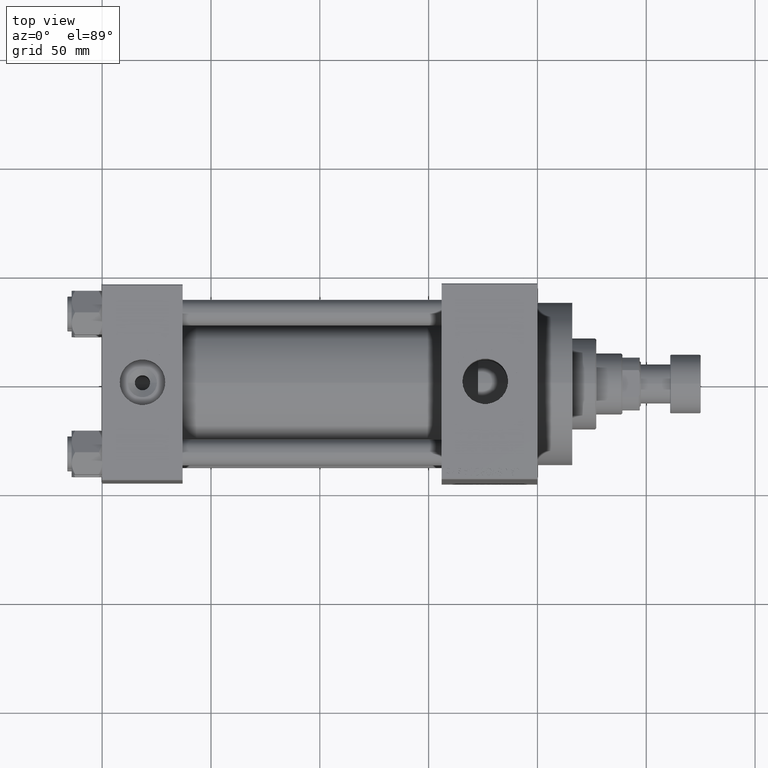
[diagram: clean part render]
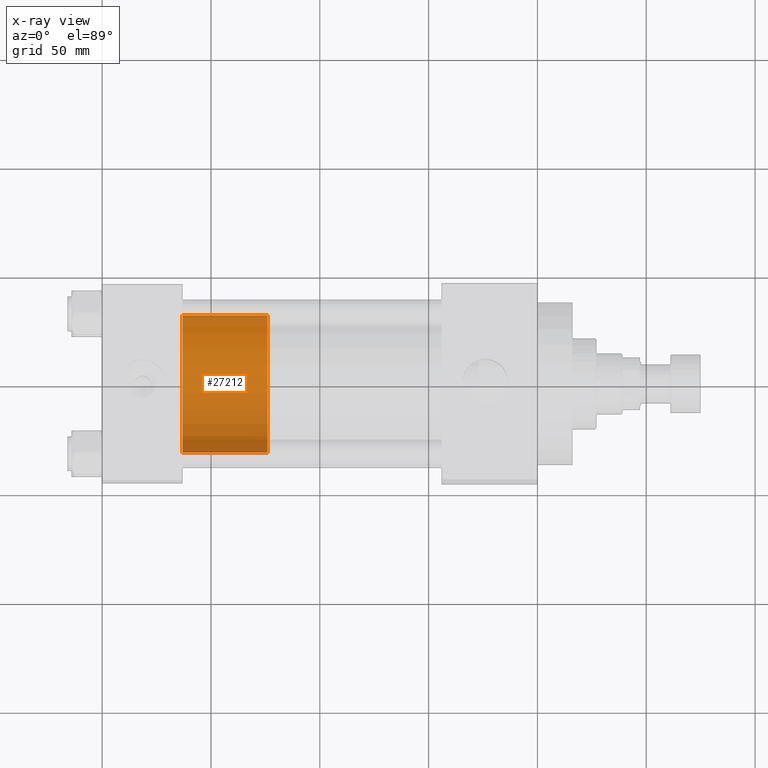
[diagram: x-ray — body ghosted, one internal face saturated and labeled with its STEP entity id]
A machine part, top view, then the same camera in x-ray: the body is ghosted and one INTERNAL B-rep face — a face not visible from any outside direction — is saturated and labeled: STEP entity #27212.
In plain terms, the highlighted cylindrical surface (partial cylindrical patch) has radius 31.5 mm, axis along (-1, 0, 0).
Its self-contained STEP definition (entity closure, byte-faithful):
#1202 = DIRECTION ( 'NONE',  ( -0.000000000000000000, -0.000000000000000000, -1.000000000000000000 ) ) ;
#2460 = AXIS2_PLACEMENT_3D ( 'NONE', #33448, #23072, #30783 ) ;
#5156 = ORIENTED_EDGE ( 'NONE', *, *, #27012, .F. ) ;
#7296 = DIRECTION ( 'NONE',  ( -0.000000000000000000, -0.000000000000000000, -1.000000000000000000 ) ) ;
#7592 = VECTOR ( 'NONE', #1202, 1000.000000000000000 ) ;
#8413 = LINE ( 'NONE', #33735, #7592 ) ;
#9575 = LINE ( 'NONE', #46707, #42684 ) ;
#10315 = VERTEX_POINT ( 'NONE', #31775 ) ;
#13675 = DIRECTION ( 'NONE',  ( -0.000000000000000000, -0.000000000000000000, -1.000000000000000000 ) ) ;
#14533 = FACE_OUTER_BOUND ( 'NONE', #46146, .T. ) ;
#16212 = ORIENTED_EDGE ( 'NONE', *, *, #46839, .F. ) ;
#16568 = VERTEX_POINT ( 'NONE', #39403 ) ;
#19923 = AXIS2_PLACEMENT_3D ( 'NONE', #37167, #7296, #40792 ) ;
#22223 = ORIENTED_EDGE ( 'NONE', *, *, #27647, .T. ) ;
#23072 = DIRECTION ( 'NONE',  ( 0.000000000000000000, 0.000000000000000000, 1.000000000000000000 ) ) ;
#23719 = DIRECTION ( 'NONE',  ( 1.000000000000000000, 0.000000000000000000, 0.000000000000000000 ) ) ;
#27012 = EDGE_CURVE ( 'NONE', #36514, #10315, #43027, .T. ) ;
#27212 = ADVANCED_FACE ( 'NONE', ( #14533 ), #33316, .T. ) ;
#27647 = EDGE_CURVE ( 'NONE', #36514, #30208, #8413, .T. ) ;
#30208 = VERTEX_POINT ( 'NONE', #42884 ) ;
#30783 = DIRECTION ( 'NONE',  ( 1.000000000000000000, 0.000000000000000000, 0.000000000000000000 ) ) ;
#31775 = CARTESIAN_POINT ( 'NONE',  ( -31.50000000000000000, 0.000000000000000000, 39.00000000000000000 ) ) ;
#33316 = CYLINDRICAL_SURFACE ( 'NONE', #19923, 31.50000000000000000 ) ;
#33448 = CARTESIAN_POINT ( 'NONE',  ( 0.000000000000000000, 0.000000000000000000, 0.000000000000000000 ) ) ;
#33735 = CARTESIAN_POINT ( 'NONE',  ( 31.50000000000000000, 3.857637417314162689E-15, 39.00000000000000000 ) ) ;
#33777 = AXIS2_PLACEMENT_3D ( 'NONE', #35057, #46136, #23719 ) ;
#35057 = CARTESIAN_POINT ( 'NONE',  ( 0.000000000000000000, 0.000000000000000000, 39.00000000000000000 ) ) ;
#36499 = ORIENTED_EDGE ( 'NONE', *, *, #40072, .T. ) ;
#36514 = VERTEX_POINT ( 'NONE', #45001 ) ;
#37167 = CARTESIAN_POINT ( 'NONE',  ( 0.000000000000000000, 0.000000000000000000, 39.00000000000000000 ) ) ;
#39403 = CARTESIAN_POINT ( 'NONE',  ( -31.50000000000000000, 0.000000000000000000, 0.000000000000000000 ) ) ;
#40072 = EDGE_CURVE ( 'NONE', #30208, #16568, #44021, .T. ) ;
#40792 = DIRECTION ( 'NONE',  ( -1.000000000000000000, 0.000000000000000000, 0.000000000000000000 ) ) ;
#42684 = VECTOR ( 'NONE', #13675, 1000.000000000000000 ) ;
#42884 = CARTESIAN_POINT ( 'NONE',  ( 31.50000000000000000, 3.857637417314162689E-15, 0.000000000000000000 ) ) ;
#43027 = CIRCLE ( 'NONE', #33777, 31.50000000000000000 ) ;
#44021 = CIRCLE ( 'NONE', #2460, 31.50000000000000000 ) ;
#45001 = CARTESIAN_POINT ( 'NONE',  ( 31.50000000000000000, 3.857637417314162689E-15, 39.00000000000000000 ) ) ;
#46136 = DIRECTION ( 'NONE',  ( 0.000000000000000000, 0.000000000000000000, 1.000000000000000000 ) ) ;
#46146 = EDGE_LOOP ( 'NONE', ( #5156, #22223, #36499, #16212 ) ) ;
#46707 = CARTESIAN_POINT ( 'NONE',  ( -31.50000000000000000, 0.000000000000000000, 39.00000000000000000 ) ) ;
#46839 = EDGE_CURVE ( 'NONE', #10315, #16568, #9575, .T. ) ;